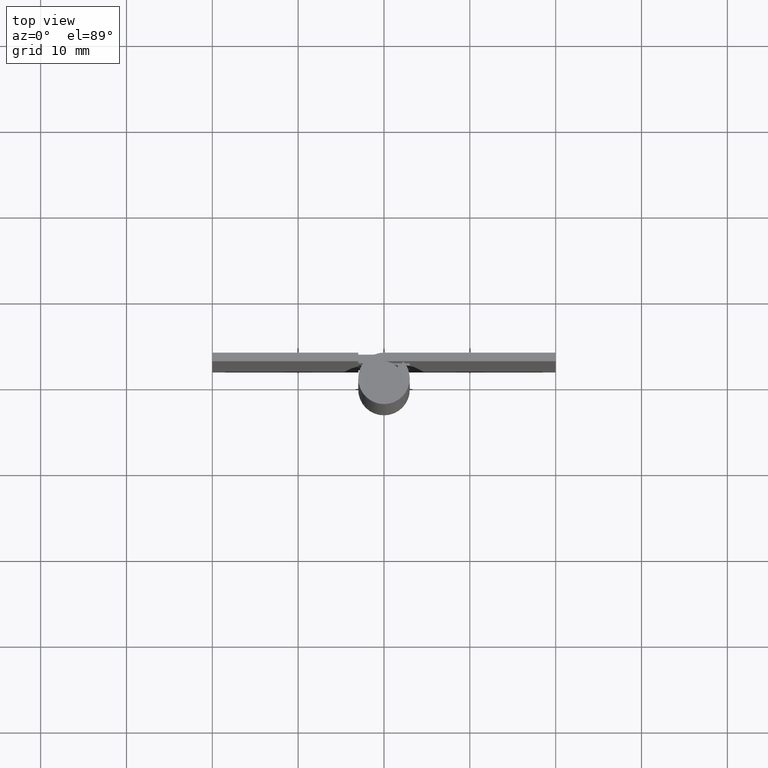
[diagram: clean part render]
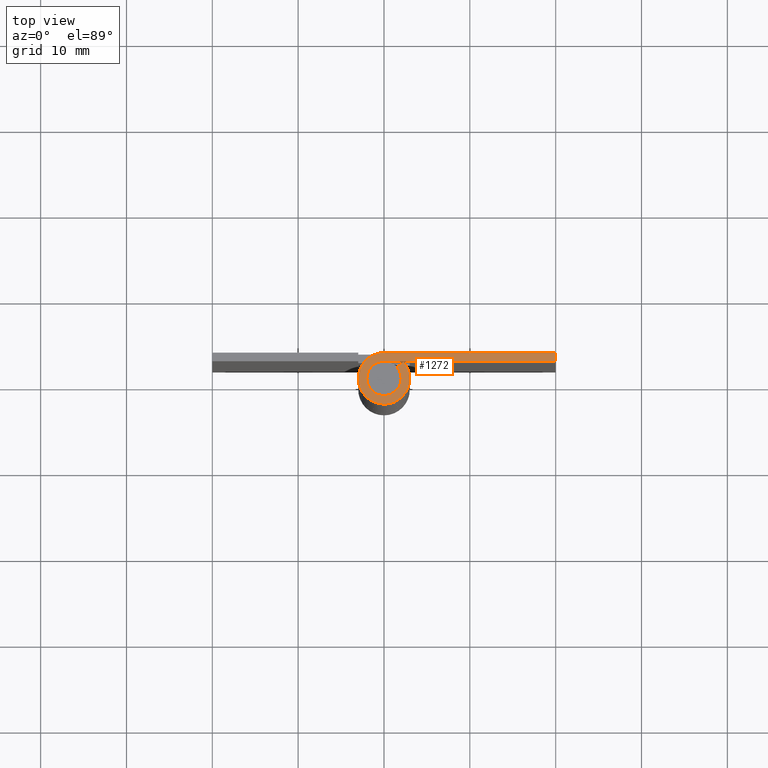
[diagram: same view with one face highlighted and labeled with its STEP entity id]
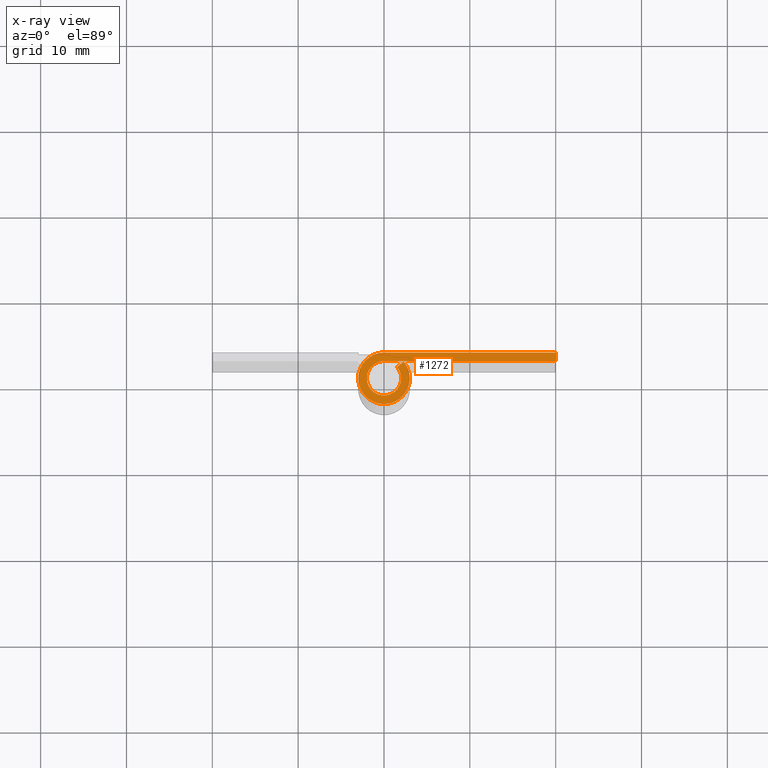
[diagram: x-ray of the same camera — body ghosted, the highlighted face saturated]
A machine part, top view. The second image highlights one B-rep face of the part: STEP entity #1272.
The next image is the same camera in x-ray: the body ghosted, the highlighted face saturated — about 0% of this face is hidden behind the body in this view.
In plain terms, the highlighted face is a freeform B-spline surface patch.
Its self-contained STEP definition (entity closure, byte-faithful):
#1195=CARTESIAN_POINT('',(-4.144053684555980,-3.291923328811429,75.0));
#1196=CARTESIAN_POINT('',(21.148622395893089,-3.291923328811429,75.0));
#1197=CARTESIAN_POINT('',(-4.144053684555980,3.299330184425220,75.0));
#1198=CARTESIAN_POINT('',(21.148622395893089,3.299330184425220,75.0));
#1199=B_SPLINE_SURFACE_WITH_KNOTS('',1,1,((#1195,#1197),(#1196,#1198)),.UNSPECIFIED.,.F.,.F.,.U.,(2,2),(2,2),(0.0,25.292676080449070),(0.0,6.591253513236650),.UNSPECIFIED.);
#1200=CARTESIAN_POINT('',(1.519868415357065,1.300000000000000,75.0));
#1201=VERTEX_POINT('',#1200);
#1202=CARTESIAN_POINT('',(0.0,2.0,75.0));
#1203=VERTEX_POINT('',#1202);
#1204=CARTESIAN_POINT('',(1.519868415357066,1.300000000000001,75.0));
#1205=CARTESIAN_POINT('',(2.565756638206525,0.077221172382445,75.0));
#1206=CARTESIAN_POINT('',(1.595298424664661,-1.206243315530681,75.0));
#1207=CARTESIAN_POINT('',(0.624840211122799,-2.489707803443805,75.0));
#1208=CARTESIAN_POINT('',(-0.836660026534074,-1.816590212458496,75.0));
#1209=CARTESIAN_POINT('',(-2.298160264190946,-1.143472621473187,75.0));
#1210=CARTESIAN_POINT('',(-1.953609534287365,0.428263689263405,75.0));
#1211=CARTESIAN_POINT('',(-1.609058804383784,2.0,75.0));
#1212=CARTESIAN_POINT('',(0.0,2.0,75.0));
#1220=(BOUNDED_CURVE()B_SPLINE_CURVE(2,(#1204,#1205,#1206,#1207,#1208,#1209,#1210,#1211,#1212),.UNSPECIFIED.,.F.,.U.)B_SPLINE_CURVE_WITH_KNOTS((3,2,2,2,3),(0.0,0.250000000000000,0.500000000000000,0.750000000000000,1.0),.UNSPECIFIED.)CURVE()GEOMETRIC_REPRESENTATION_ITEM()RATIONAL_B_SPLINE_CURVE((1.0,0.779144352681743,1.0,0.779144352681743,1.0,0.779144352681743,1.0,0.779144352681743,1.0))REPRESENTATION_ITEM(''));
#1221=EDGE_CURVE('',#1201,#1203,#1220,.T.);
#1222=ORIENTED_EDGE('',*,*,#1221,.T.);
#1223=CARTESIAN_POINT('',(20.0,2.0,75.0));
#1224=VERTEX_POINT('',#1223);
#1225=CARTESIAN_POINT('',(0.0,2.0,75.0));
#1226=CARTESIAN_POINT('',(20.0,2.0,75.0));
#1227=QUASI_UNIFORM_CURVE('',1,(#1225,#1226),.UNSPECIFIED.,.F.,.U.);
#1228=EDGE_CURVE('',#1203,#1224,#1227,.T.);
#1229=ORIENTED_EDGE('',*,*,#1228,.T.);
#1230=CARTESIAN_POINT('',(20.0,3.0,75.0));
#1231=VERTEX_POINT('',#1230);
#1232=CARTESIAN_POINT('',(20.0,2.0,75.0));
#1233=CARTESIAN_POINT('',(20.0,3.0,75.0));
#1234=QUASI_UNIFORM_CURVE('',1,(#1232,#1233),.UNSPECIFIED.,.F.,.U.);
#1235=EDGE_CURVE('',#1224,#1231,#1234,.T.);
#1236=ORIENTED_EDGE('',*,*,#1235,.T.);
#1237=CARTESIAN_POINT('',(0.0,3.0,75.0));
#1238=VERTEX_POINT('',#1237);
#1239=CARTESIAN_POINT('',(20.0,3.0,75.0));
#1240=CARTESIAN_POINT('',(0.0,3.0,75.0));
#1241=QUASI_UNIFORM_CURVE('',1,(#1239,#1240),.UNSPECIFIED.,.F.,.U.);
#1242=EDGE_CURVE('',#1231,#1238,#1241,.T.);
#1243=ORIENTED_EDGE('',*,*,#1242,.T.);
#1244=CARTESIAN_POINT('',(2.279802623035600,1.950000000000000,75.0));
#1245=VERTEX_POINT('',#1244);
#1246=CARTESIAN_POINT('',(2.279802623035600,1.950000000000000,75.0));
#1247=CARTESIAN_POINT('',(3.848634957309785,0.115831758573665,75.0));
#1248=CARTESIAN_POINT('',(2.392947636996992,-1.809364973296021,75.0));
#1249=CARTESIAN_POINT('',(0.937260316684198,-3.734561705165708,75.0));
#1250=CARTESIAN_POINT('',(-1.254990039801111,-2.724885318687744,75.0));
#1251=CARTESIAN_POINT('',(-3.447240396286424,-1.715208932209778,75.0));
#1252=CARTESIAN_POINT('',(-2.930414301431048,0.642395533895113,75.0));
#1253=CARTESIAN_POINT('',(-2.413588206575672,3.0,75.0));
#1254=CARTESIAN_POINT('',(0.0,3.0,75.0));
#1262=(BOUNDED_CURVE()B_SPLINE_CURVE(2,(#1246,#1247,#1248,#1249,#1250,#1251,#1252,#1253,#1254),.UNSPECIFIED.,.F.,.U.)B_SPLINE_CURVE_WITH_KNOTS((3,2,2,2,3),(0.0,0.250000000000000,0.500000000000000,0.750000000000000,1.0),.UNSPECIFIED.)CURVE()GEOMETRIC_REPRESENTATION_ITEM()RATIONAL_B_SPLINE_CURVE((1.0,0.779144352681743,1.0,0.779144352681743,1.0,0.779144352681743,1.0,0.779144352681743,1.0))REPRESENTATION_ITEM(''));
#1263=EDGE_CURVE('',#1245,#1238,#1262,.T.);
#1264=ORIENTED_EDGE('',*,*,#1263,.F.);
#1265=CARTESIAN_POINT('',(2.279802623035600,1.950000000000000,75.0));
#1266=CARTESIAN_POINT('',(1.519868415357065,1.300000000000000,75.0));
#1267=QUASI_UNIFORM_CURVE('',1,(#1265,#1266),.UNSPECIFIED.,.F.,.U.);
#1268=EDGE_CURVE('',#1245,#1201,#1267,.T.);
#1269=ORIENTED_EDGE('',*,*,#1268,.T.);
#1270=EDGE_LOOP('',(#1222,#1229,#1236,#1243,#1264,#1269));
#1271=FACE_OUTER_BOUND('',#1270,.T.);
#1272=ADVANCED_FACE('',(#1271),#1199,.T.);